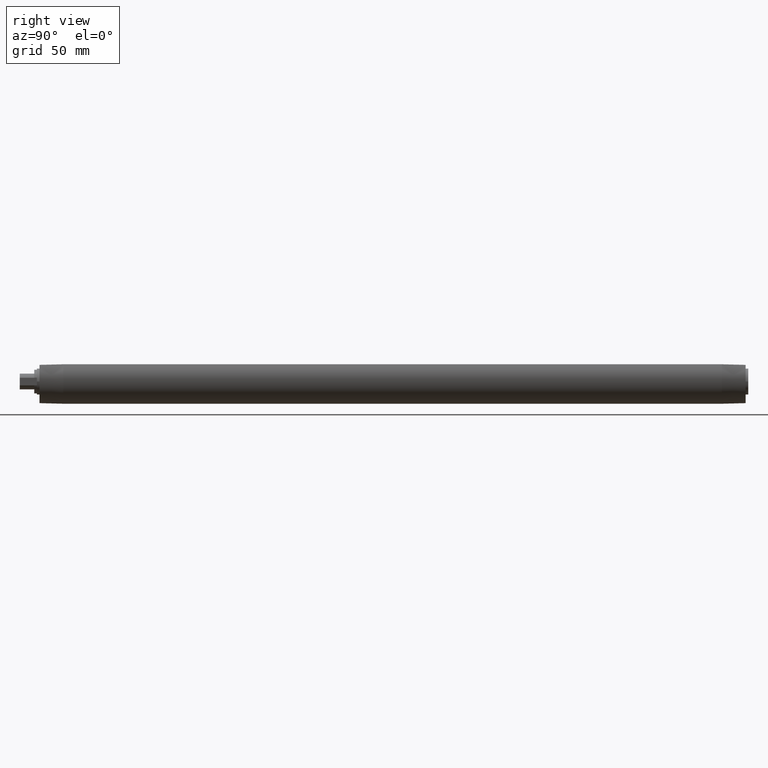
[diagram: clean part render]
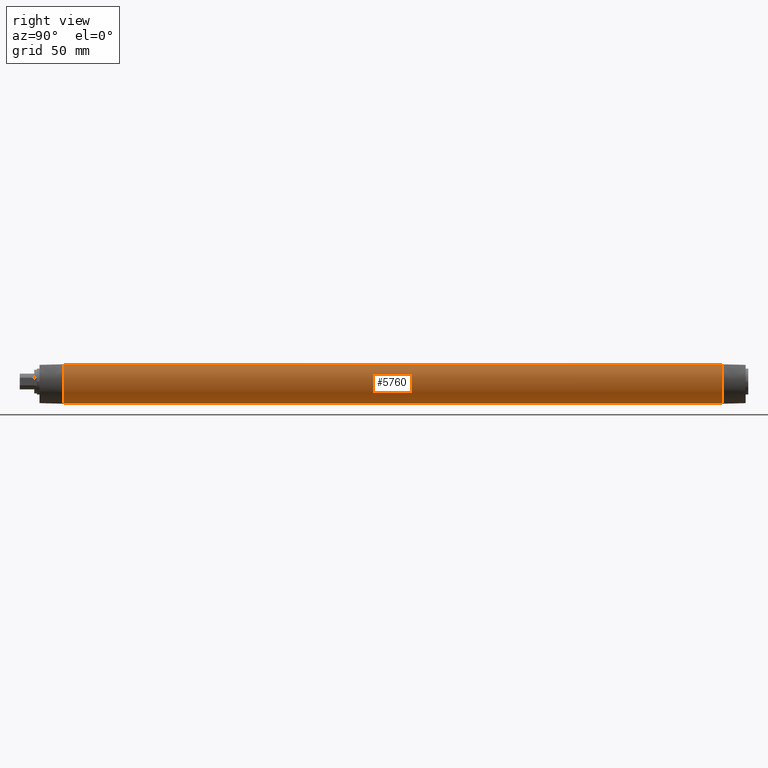
[diagram: same view with one face highlighted and labeled with its STEP entity id]
A machine part, right view. The second image highlights one B-rep face of the part: STEP entity #5760.
In plain terms, the highlighted cylindrical surface (edge-blend (fillet) strip) has radius 20 mm, axis along (0, 1, 0).
Its self-contained STEP definition (entity closure, byte-faithful):
#5350=CARTESIAN_POINT('',(0.,-1.06581410364015E-14,-75.));
#5360=DIRECTION('',(0.,0.,1.));
#5370=DIRECTION('',(1.,0.,0.));
#5380=AXIS2_PLACEMENT_3D('',#5350,#5360,#5370);
#5390=CYLINDRICAL_SURFACE('',#5380,20.);
#5400=CARTESIAN_POINT('',(0.,-1.06581410364015E-14,-250.));
#5410=DIRECTION('',(0.,0.,-1.));
#5420=DIRECTION('',(-0.347985272676877,-0.9375,0.));
#5430=AXIS2_PLACEMENT_3D('',#5400,#5410,#5420);
#5440=CIRCLE('',#5430,20.);
#5450=CARTESIAN_POINT('',(-6.95970545353755,-18.75,-250.));
#5460=VERTEX_POINT('',#5450);
#5470=CARTESIAN_POINT('',(-16.5698521417666,11.1999999999999,-250.));
#5480=VERTEX_POINT('',#5470);
#5490=EDGE_CURVE('',#5460,#5480,#5440,.T.);
#5500=ORIENTED_EDGE('',*,*,#5490,.F.);
#5510=CARTESIAN_POINT('',(-16.5698521417664,11.2,75.));
#5520=DIRECTION('',(0.,0.,-1.));
#5530=VECTOR('',#5520,1.);
#5540=LINE('',#5510,#5530);
#5550=CARTESIAN_POINT('',(-16.5698521417666,11.1999999999999,250.));
#5560=VERTEX_POINT('',#5550);
#5570=EDGE_CURVE('',#5560,#5480,#5540,.T.);
#5580=ORIENTED_EDGE('',*,*,#5570,.T.);
#5590=CARTESIAN_POINT('',(0.,-1.06581410364015E-14,250.));
#5600=DIRECTION('',(0.,0.,1.));
#5610=DIRECTION('',(-1.,1.22464679914735E-16,0.));
#5620=AXIS2_PLACEMENT_3D('',#5590,#5600,#5610);
#5630=CIRCLE('',#5620,20.);
#5640=CARTESIAN_POINT('',(-6.95970545353753,-18.75,250.));
#5650=VERTEX_POINT('',#5640);
#5660=EDGE_CURVE('',#5560,#5650,#5630,.T.);
#5670=ORIENTED_EDGE('',*,*,#5660,.F.);
#5680=CARTESIAN_POINT('',(-6.95970545353753,-18.75,-75.));
#5690=DIRECTION('',(0.,0.,1.));
#5700=VECTOR('',#5690,1.);
#5710=LINE('',#5680,#5700);
#5720=EDGE_CURVE('',#5460,#5650,#5710,.T.);
#5730=ORIENTED_EDGE('',*,*,#5720,.T.);
#5740=EDGE_LOOP('',(#5730,#5670,#5580,#5500));
#5750=FACE_OUTER_BOUND('',#5740,.T.);
#5760=ADVANCED_FACE('',(#5750),#5390,.T.);